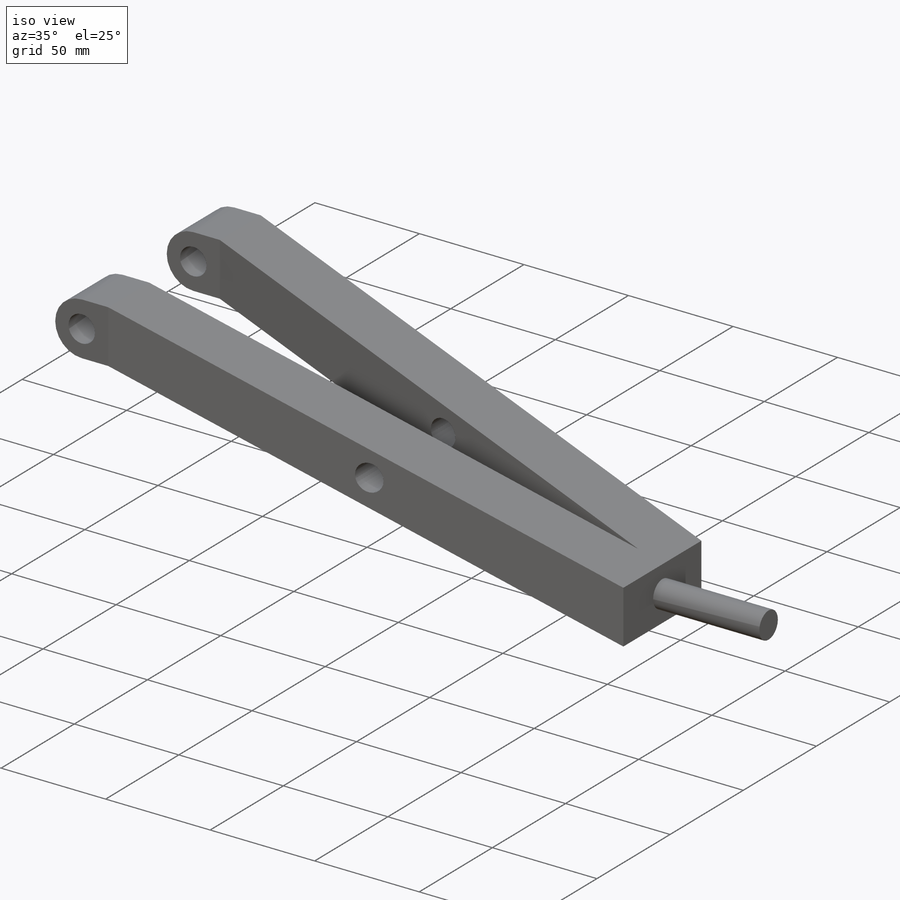
[diagram: iso view]
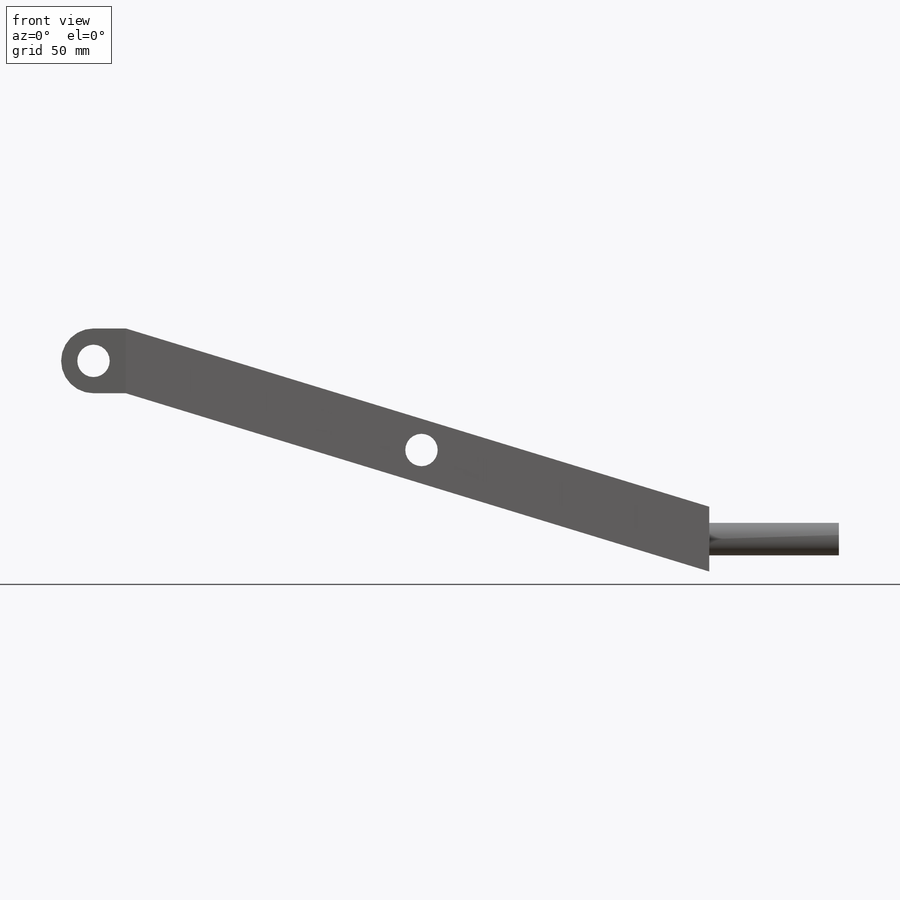
[diagram: front view]
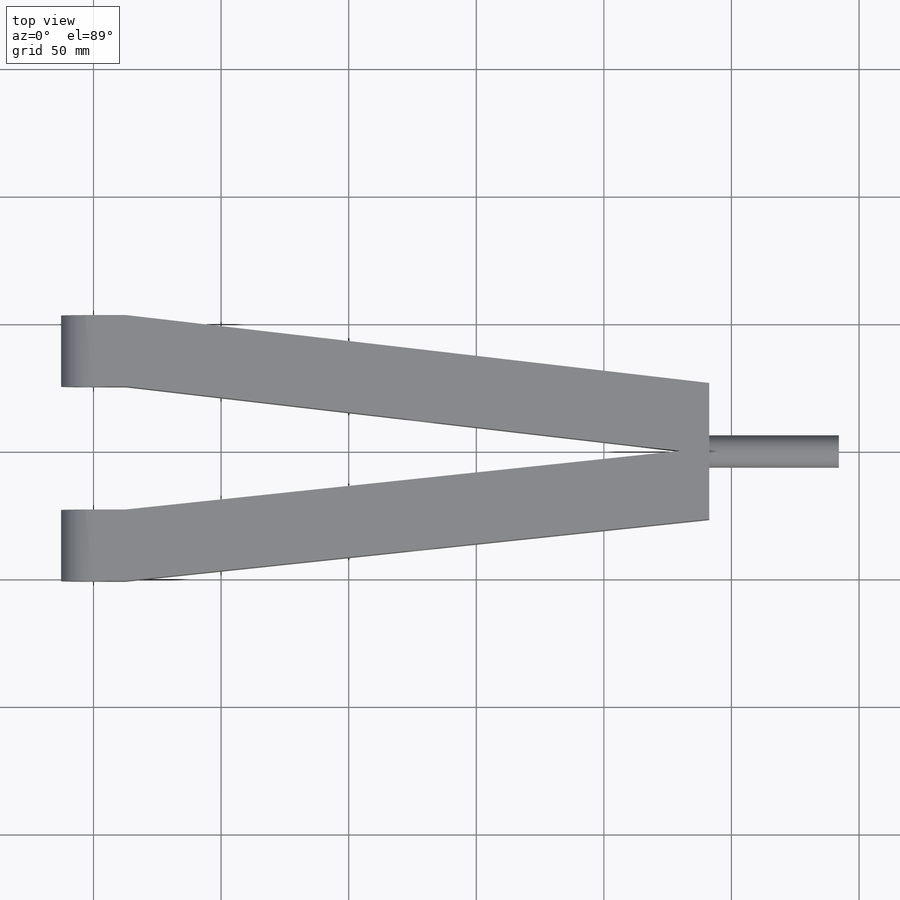
[diagram: top view]
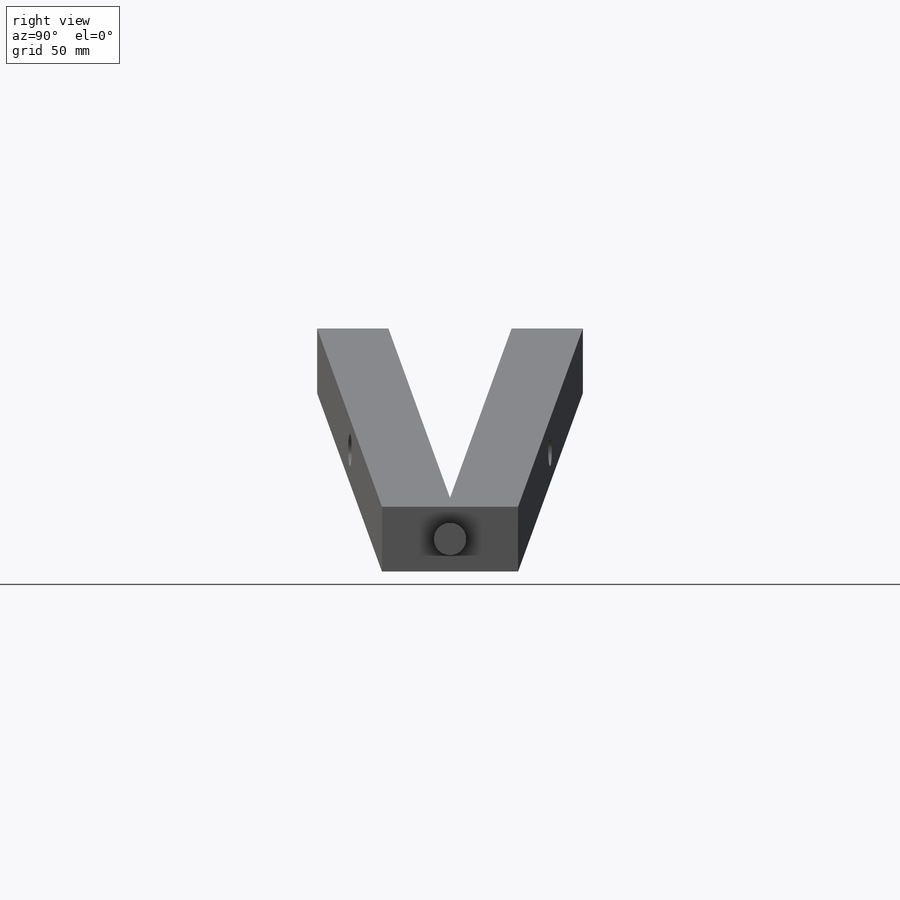
[diagram: right view]
SOLIDWORKS PART (.sldprt)
format: sldprt  version: not decoded by parser v0  size: 203,264 bytes
history: native  units: mm
features: sketch x9, cut_extrude x3, plane x2, extrude x2, mirror x2, material x1, sweep x1 (+14 scaffold rows collapsed)
feature tree (34):
  scaffold x14  (default folders/planes/origin — collapsed)
  material  "Material <not specified>"
  sketch  "Sketch1"  dims[c1.D1=38.1mm c1.D2=38.1mm c2.D1=38.1mm c2.D2=12.7mm]
  plane  "Plane1"  Offset=12.7mm
  sketch  "Sketch2"  dims[D1=69.85mm D2=228.6mm]
  sketch  "3DSketch4"
  plane  "Plane3"  Offset=12.7mm
  sketch  "Sketch10"  dims[D1=27.94mm D2=25.4mm]
  sweep  "Sweep3"
  sketch  "Sketch12"  dims[D1=0.0mm]
  extrude  "Boss-Extrude2"  Depth=25.4mm
  mirror  "Mirror5"
  sketch  "Sketch13"  dims[D1=12.7mm]
  cut_extrude  "Cut-Extrude4"  [1 undecoded]
  sketch  "Sketch14"
  cut_extrude  "Cut-Extrude5"  [1 undecoded]
  mirror  "Mirror6"
  sketch  "Sketch15"  dims[D1=12.7mm]
  extrude  "Boss-Extrude3"  Depth=50.8mm
  sketch  "Sketch16"  dims[D2=12.7mm D1=115.824mm D3=34.925mm]
  cut_extrude  "Cut-Extrude6"  [1 undecoded]
decode coverage: 9 of 17 modeling features carry decoded parameters
note: 3 parameter values undecoded
summary: no parameter record found for 3 features
note: suppression state not decoded; provenance and decode notes live in map.json
